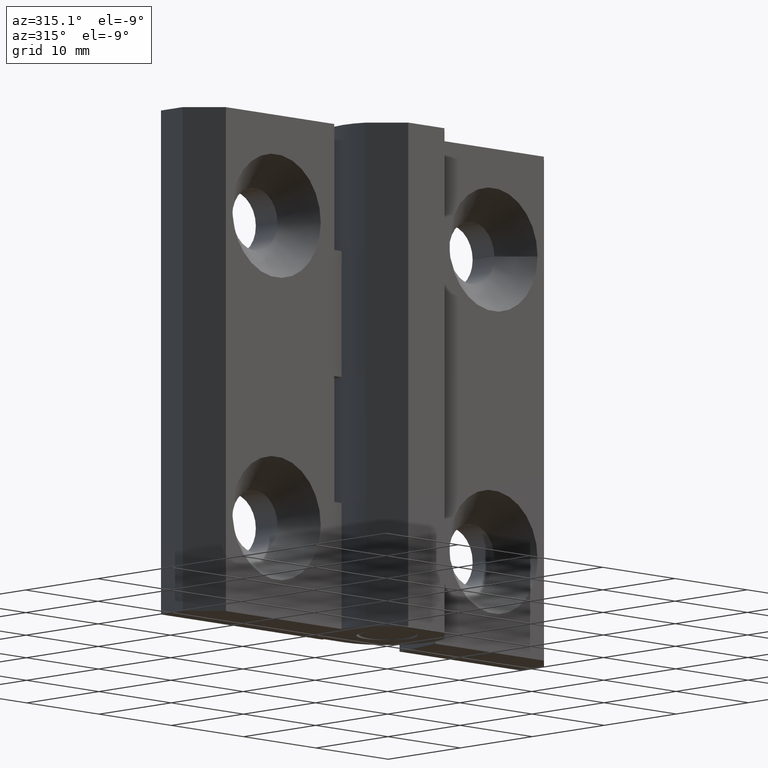
[diagram: clean part render]
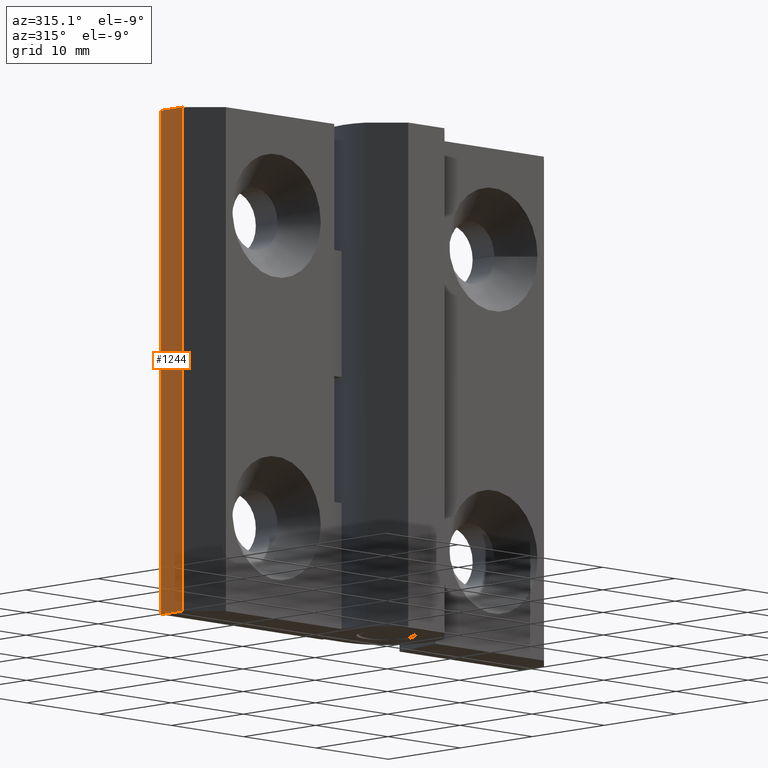
[diagram: same view with one face highlighted and labeled with its STEP entity id]
A machine part, auxiliary view. The second image highlights one B-rep face of the part: STEP entity #1244.
In plain terms, the highlighted planar face has unit normal (-1, 0, -0).
Its self-contained STEP definition (entity closure, byte-faithful):
#189=FACE_OUTER_BOUND('',#284,.T.);
#284=EDGE_LOOP('',(#1124,#1125,#1126,#1127));
#386=LINE('',#1970,#508);
#399=LINE('',#2014,#521);
#413=LINE('',#2047,#535);
#415=LINE('',#2050,#537);
#508=VECTOR('',#1604,3.);
#521=VECTOR('',#1645,50.);
#535=VECTOR('',#1683,3.);
#537=VECTOR('',#1687,50.);
#624=VERTEX_POINT('',#1967);
#625=VERTEX_POINT('',#1969);
#642=VERTEX_POINT('',#2013);
#649=VERTEX_POINT('',#2046);
#773=EDGE_CURVE('',#624,#625,#386,.T.);
#793=EDGE_CURVE('',#625,#642,#399,.T.);
#809=EDGE_CURVE('',#642,#649,#413,.T.);
#811=EDGE_CURVE('',#624,#649,#415,.T.);
#1124=ORIENTED_EDGE('',*,*,#793,.F.);
#1125=ORIENTED_EDGE('',*,*,#773,.F.);
#1126=ORIENTED_EDGE('',*,*,#811,.T.);
#1127=ORIENTED_EDGE('',*,*,#809,.F.);
#1180=PLANE('',#1352);
#1244=ADVANCED_FACE('',(#189),#1180,.T.);
#1352=AXIS2_PLACEMENT_3D('',#2049,#1685,#1686);
#1604=DIRECTION('',(-4.44089209850063E-15,1.,0.));
#1645=DIRECTION('',(0.,0.,-1.));
#1683=DIRECTION('',(4.44089209850063E-15,-1.,0.));
#1685=DIRECTION('center_axis',(1.,4.44089209850063E-15,0.));
#1686=DIRECTION('ref_axis',(-4.61852778244065E-15,1.,0.));
#1687=DIRECTION('',(0.,0.,-1.));
#1967=CARTESIAN_POINT('',(25.,3.29999999999999,25.));
#1969=CARTESIAN_POINT('',(25.,6.29999999999999,25.));
#1970=CARTESIAN_POINT('',(25.,6.29999999999999,25.));
#2013=CARTESIAN_POINT('',(25.,6.29999999999999,-25.));
#2014=CARTESIAN_POINT('',(25.,6.29999999999999,0.));
#2046=CARTESIAN_POINT('',(25.,3.29999999999999,-25.));
#2047=CARTESIAN_POINT('',(25.,6.29999999999999,-25.));
#2049=CARTESIAN_POINT('Origin',(25.,3.29999999999999,0.));
#2050=CARTESIAN_POINT('',(25.,3.29999999999999,0.));